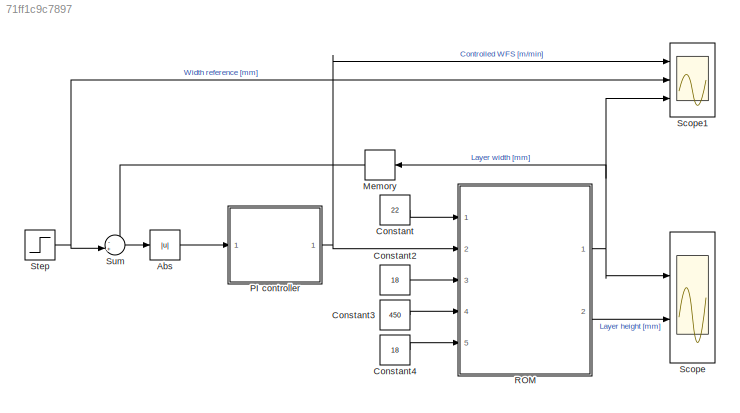
MODEL slx_71ff1c9c7897
KIND model
CONFIG AbsTol = auto
CONFIG EnableMultiTasking = off
CONFIG FixedStep = 1e-3
CONFIG InitFcn = net = load('./net.mat').net\n
CONFIG MaxStep = auto
CONFIG MinStep = auto
CONFIG RelTol = 1e-3
CONFIG SampleTimeConstraint = Unconstrained
CONFIG SolverName = VariableStepAuto
CONFIG StartTime = 0.0
CONFIG StopTime = 10
BLOCK [Abs] Abs
  SaturateOnIntegerOverflow = off
BLOCK [Constant] Constant
  Value = 22
BLOCK [Constant] Constant2
  Value = 18
BLOCK [Constant] Constant3
  Value = 450
BLOCK [Constant] Constant4
  Value = 18
BLOCK [Memory] Memory
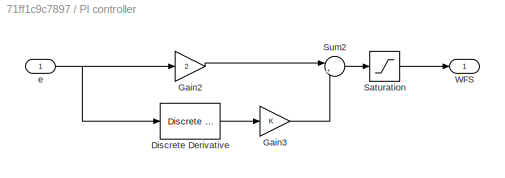
BLOCK [SubSystem] PI controller
  Ports = [1, 1]
  RequestExecContextInheritance = off
BLOCK [Reference] PI controller/Discrete Derivative  REF=simulink/Discrete/Discrete Derivative
  Ports = [1, 1]
  SourceBlock = simulink/Discrete/Discrete Derivative
  SourceProductBaseCode = SL
  SourceType = Discrete Derivative
BLOCK [Gain] PI controller/Gain2
  Gain = 2
BLOCK [Gain] PI controller/Gain3
BLOCK [Saturate] PI controller/Saturation
  LowerLimit = 2
  UpperLimit = 10
BLOCK [Sum] PI controller/Sum2
  Inputs = |++
  Ports = [2, 1]
BLOCK [Outport] PI controller/WFS
BLOCK [Inport] PI controller/e
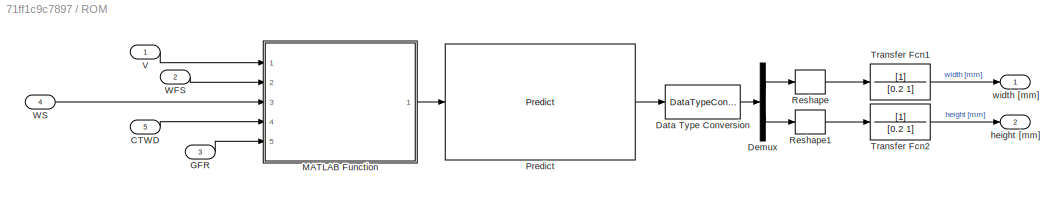
BLOCK [SubSystem] ROM
  Ports = [5, 2]
  RequestExecContextInheritance = off
BLOCK [Inport] ROM/CTWD
  Port = 5
BLOCK [DataTypeConversion] ROM/Data Type Conversion
  RndMeth = Floor
  SaturateOnIntegerOverflow = off
BLOCK [Demux] ROM/Demux
  Outputs = 2
  Ports = [1, 2]
BLOCK [Inport] ROM/GFR
  Port = 3
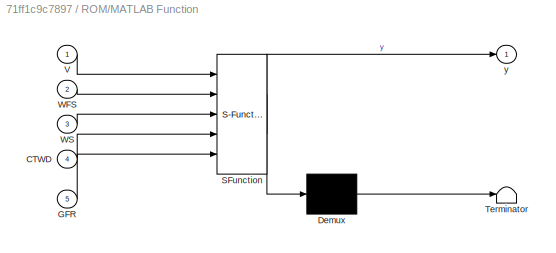
BLOCK [SubSystem] ROM/MATLAB Function
  ErrorFcn = Stateflow.Translate.translate
  PermitHierarchicalResolution = ExplicitOnly
  Ports = [5, 1]
  RequestExecContextInheritance = off
  SFBlockType = MATLAB Function
  TreatAsAtomicUnit = on
BLOCK [Demux] ROM/MATLAB Function/ Demux 
  Outputs = 1
  Ports = [1, 1]
BLOCK [S-Function] ROM/MATLAB Function/ SFunction 
  EnableBusSupport = on
  FunctionName = sf_sfun
  PortCounts = [5 2]
  Ports = [5, 2]
  SFcnIsStateOwnerBlock = off
  SFunctionDeploymentMode = off
  Tag = Stateflow S-Function 1
BLOCK [Terminator] ROM/MATLAB Function/ Terminator 
BLOCK [Inport] ROM/MATLAB Function/CTWD
  Port = 4
BLOCK [Inport] ROM/MATLAB Function/GFR
  Port = 5
BLOCK [Inport] ROM/MATLAB Function/V
BLOCK [Inport] ROM/MATLAB Function/WFS
  Port = 2
BLOCK [Inport] ROM/MATLAB Function/WS
  Port = 3
BLOCK [Outport] ROM/MATLAB Function/y
BLOCK [Reference] ROM/Predict  REF=deeplib/Predict
  Ports = [1, 1]
  SourceBlock = deeplib/Predict
  SourceProductBaseCode = NN
  SourceType = Predict
BLOCK [Reshape] ROM/Reshape
  OutputDimensionality = Customize
  OutputDimensions = 1
  Ports = [1, 1]
BLOCK [Reshape] ROM/Reshape1
  OutputDimensionality = Customize
  OutputDimensions = 1
  Ports = [1, 1]
BLOCK [TransferFcn] ROM/Transfer Fcn1
  Denominator = [0.2 1]
BLOCK [TransferFcn] ROM/Transfer Fcn2
  Denominator = [0.2 1]
BLOCK [Inport] ROM/V
BLOCK [Inport] ROM/WFS
  Port = 2
BLOCK [Inport] ROM/WS
  Port = 4
BLOCK [Outport] ROM/height [mm]
  Port = 2
BLOCK [Outport] ROM/width [mm]
BLOCK [Scope] Scope
  Floating = off
  NumInputPorts = 2
  Ports = [2]
  ScopeSpecificationString = Simulink.scopes.TimeScopeBlockCfg('CurrentConfiguration', extmgr.ConfigurationSet(extmgr.Configuration('Core','General UI',true),extmgr.Configuration('Core','Source UI',true),extmgr.Configuration('Sources','WiredSimulink',true),extmgr.Configuration('Visuals','Time Domain',true,'SerializedDisplays',{struct('MinYLimReal','-0.67674','MaxYLimReal','6.09064','YLabelReal','','MinYLimMag','0.00000','MaxY...<+1992ch>
BLOCK [Scope] Scope1
  Floating = off
  NumInputPorts = 3
  Ports = [3]
  ScopeSpecificationString = Simulink.scopes.TimeScopeBlockCfg('CurrentConfiguration', extmgr.ConfigurationSet(extmgr.Configuration('Core','General UI',true),extmgr.Configuration('Core','Source UI',true),extmgr.Configuration('Sources','WiredSimulink',true,'DataLoggingVariableName','ScopeData1'),extmgr.Configuration('Visuals','Time Domain',true,'SerializedDisplays',{struct('MinYLimReal','1.00000','MaxYLimReal','11.00000','YLab...<+2103ch>
BLOCK [Step] Step
  After = 6
  Before = 4
  SampleTime = 0
  Time = 5
BLOCK [Sum] Sum
  Inputs = -+|
  Ports = [2, 1]
LINE Abs:1 -> PI controller:1
LINE Constant2:1 -> ROM:3
LINE Constant3:1 -> ROM:4
LINE Constant4:1 -> ROM:5
LINE Constant:1 -> ROM:1
LINE Memory:1 -> Sum:1
LINE PI controller/Discrete Derivative:1 -> PI controller/Gain3:1
LINE PI controller/Gain2:1 -> PI controller/Sum2:1
LINE PI controller/Gain3:1 -> PI controller/Sum2:2
LINE PI controller/Saturation:1 -> PI controller/WFS:1
LINE PI controller/Sum2:1 -> PI controller/Saturation:1
NET PI controller/e:1 -> PI controller/Discrete Derivative:1, PI controller/Gain2:1
NET PI controller:1 -> ROM:2, Scope1:1
LINE ROM/CTWD:1 -> ROM/MATLAB Function:4
LINE ROM/Data Type Conversion:1 -> ROM/Demux:1
LINE ROM/Demux:1 -> ROM/Reshape:1
LINE ROM/Demux:2 -> ROM/Reshape1:1
LINE ROM/GFR:1 -> ROM/MATLAB Function:5
LINE ROM/MATLAB Function:1 -> ROM/Predict:1
LINE ROM/Predict:1 -> ROM/Data Type Conversion:1
LINE ROM/Reshape1:1 -> ROM/Transfer Fcn2:1
LINE ROM/Reshape:1 -> ROM/Transfer Fcn1:1
LINE ROM/Transfer Fcn1:1 -> ROM/width [mm]:1
LINE ROM/Transfer Fcn2:1 -> ROM/height [mm]:1
LINE ROM/V:1 -> ROM/MATLAB Function:1
LINE ROM/WFS:1 -> ROM/MATLAB Function:2
LINE ROM/WS:1 -> ROM/MATLAB Function:3
NET ROM:1 -> Memory:1, Scope1:3, Scope:1
LINE ROM:2 -> Scope:2
NET Step:1 -> Scope1:2, Sum:2
LINE Sum:1 -> Abs:1
note: NET lines group one-source signal fan-out (src -> all destinations, sorted); 1:1 wires keep LINE
CHART ROM/MATLAB Function states=1 transitions=1
  STATE_LABEL 'eML_blk_kernel()'
  STATE_LABEL 'SCRIPT:\nfunction y = convert_input(V, WFS, WS, CTWD, GFR)\n\ny = [V, WFS, WS, CTWD, GFR];'
CHART  states=0 transitions=0
